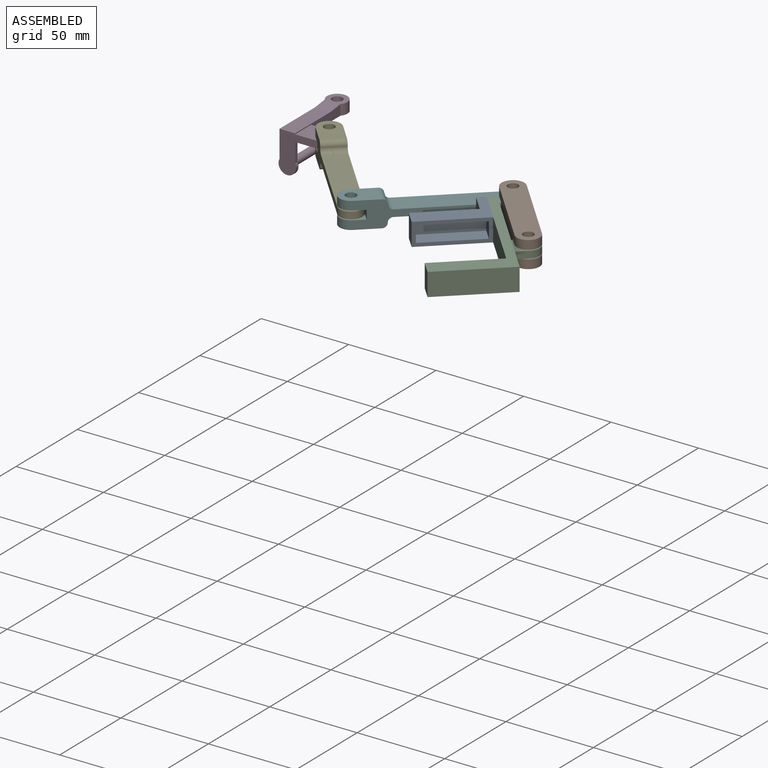
[diagram: assembled view]
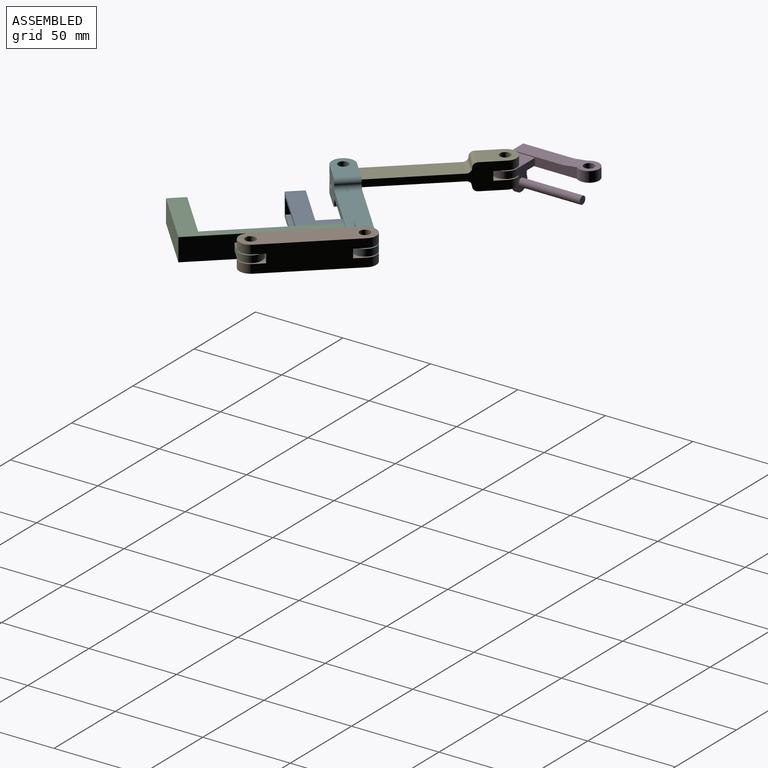
[diagram: assembled view, second angle]
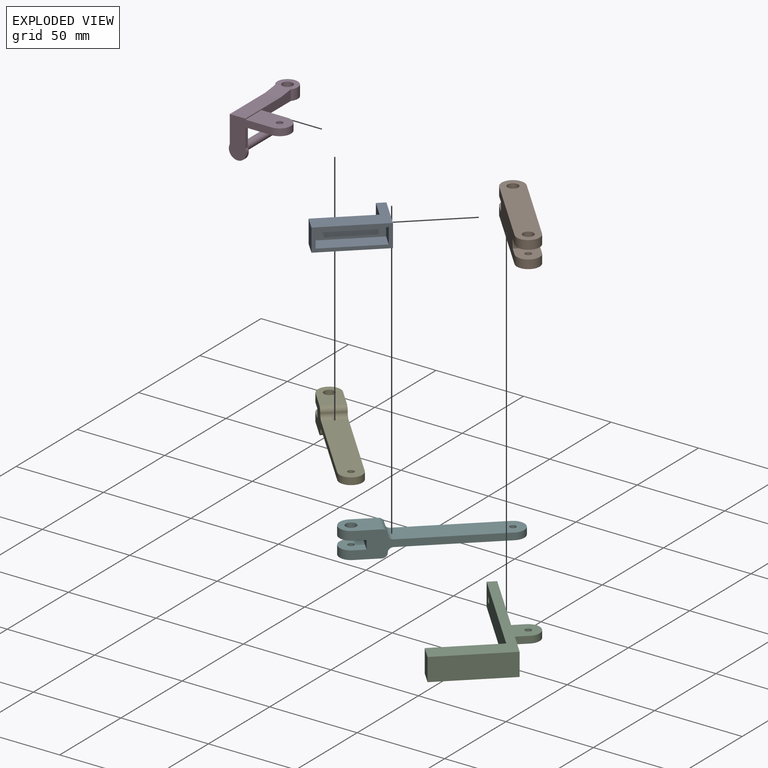
[diagram: exploded view]
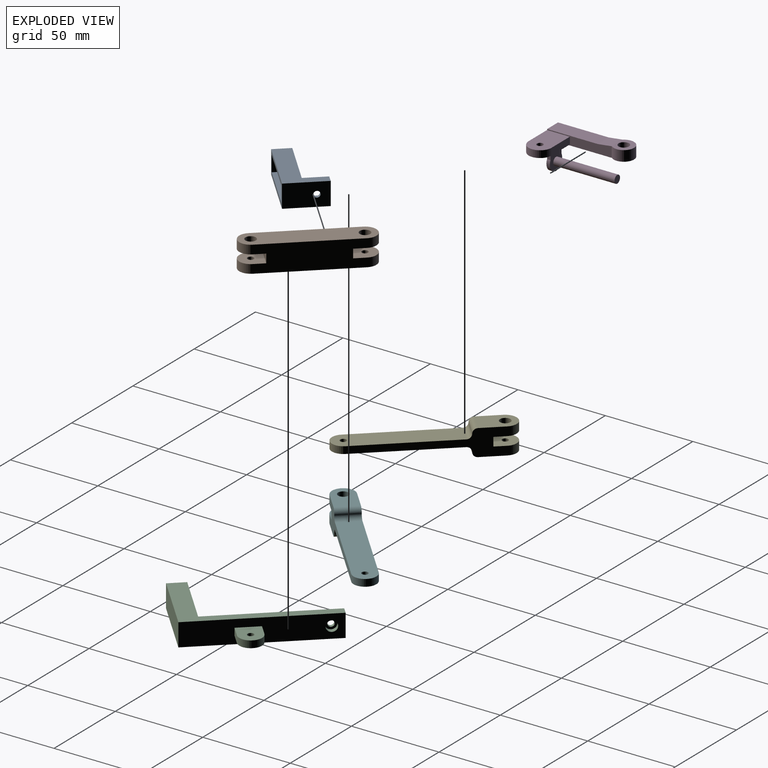
[diagram: exploded view, second angle]
ASSEMBLY  parts=6 mates=5
PART A: 21 faces, bbox 38.5x23x13 mm
  f0: plane 34.5x9mm, normal (0,-1,0), area 310.5mm2, adj f10,f11,f12,f13
  f1: plane 3.46x3mm, normal (0,0,1), area 10.4mm2, adj f2,f6,f8,f15
  f2: plane 3x3mm, normal (0,0.87,0.5), area 10.4mm2, adj f1,f3,f6,f15
  f3: plane 3x3mm, normal (0,0.87,-0.5), area 10.4mm2, adj f2,f4,f6,f15
  f4: plane 3.46x3mm, normal (0,0,-1), area 10.4mm2, adj f3,f5,f6,f15
  f5: plane 3x3mm, normal (0,-0.87,-0.5), area 10.4mm2, adj f4,f6,f8,f15
  f6: plane 6.93x6mm, normal (-1,0,0), area 21.6mm2, adj f1,f2,f3,f4,f5,f7,f8
  f7: cylinder r=1.75mm len=3.5mm, axis (1,0,0), area 22mm2, adj f6,f20
  f8: plane 3x3mm, normal (0,-0.87,0.5), area 10.4mm2, adj f1,f5,f6,f15
  f9: plane 33.5x13mm, normal (0,1,0), area 435.5mm2, adj f14,f15,f18,f19
  f10: plane 9x9mm, normal (-1,0,0), area 81mm2, adj f0,f11,f13,f17
  f11: plane 34.5x9mm, normal (0,0,-1), area 310.5mm2, adj f0,f10,f12,f17
  f12: plane 9x9mm, normal (1,0,0), area 81mm2, adj f0,f11,f13,f17
  f13: plane 34.5x9mm, normal (0,0,1), area 310.5mm2, adj f0,f10,f12,f17
  f14: plane 13x10mm, normal (-1,0,0), area 130mm2, adj f9,f17,f18,f19
  f15: plane 13x13mm, normal (-1,0,0), area 137.8mm2, adj f1,f2,f3,f4,f5,f8,f9,f16
  f16: plane 13x5mm, normal (0,1,0), area 65mm2, adj f15,f18,f19,f20
  f17: plane 38.5x13mm, normal (0,-1,0), area 190mm2, adj f10,f11,f12,f13,f14,f18,f19,f20
  f18: plane 38.5x23mm, normal (0,0,1), area 450mm2, adj f9,f14,f15,f16,f17,f20
  f19: plane 38.5x23mm, normal (0,0,-1), area 450mm2, adj f9,f14,f15,f16,f17,f20
  f20: plane 23x13mm, normal (1,0,0), area 289.4mm2, adj f7,f16,f17,f18,f19
PART B: 36 faces, bbox 15x67x13 mm
  f0: cylinder r=1.75mm len=3.5mm, axis (-1,0,0), area 22mm2, adj f9,f19
  f1: cylinder r=1.75mm len=3.5mm, axis (1,0,0), area 22mm2, adj f10,f12
  f2: plane 54x15mm, normal (0,0,1), area 745mm2, adj f4,f5,f6,f7,f8,f9,f10,f22
  f3: plane 54x15mm, normal (0,0,-1), area 745mm2, adj f4,f5,f6,f7,f8,f9,f10,f22
  f4: plane 13x5mm, normal (0,-1,0), area 65mm2, adj f2,f3,f9,f10
  f5: cylinder r=6.5mm len=13mm, axis (-1,0,0), area 102.1mm2, adj f2,f3,f6,f9
  f6: plane 67x13mm, normal (1,0,0), area 772.4mm2, adj f2,f3,f5,f13,f14,f15,f16,f17
  f7: cylinder r=6.5mm len=13mm, axis (1,0,0), area 102.1mm2, adj f2,f3,f8,f10
  f8: plane 67x13mm, normal (-1,0,0), area 778.2mm2, adj f2,f3,f7,f11,f24,f27
  f9: plane 13x13mm, normal (-1,0,0), area 141.2mm2, adj f0,f2,f3,f4,f5
  f10: plane 13x13mm, normal (1,0,0), area 141.2mm2, adj f1,f2,f3,f4,f7
  f11: cylinder r=3mm len=6mm, axis (-1,0,0), area 56.5mm2, adj f8,f12
  f12: plane 6x6mm, normal (-1,0,0), area 18.7mm2, adj f1,f11
  f13: plane 3x3mm, normal (0,-0.87,-0.5), area 10.4mm2, adj f6,f14,f18,f19
  f14: plane 3.46x3mm, normal (0,0,-1), area 10.4mm2, adj f6,f13,f15,f19
  f15: plane 3x3mm, normal (0,0.87,-0.5), area 10.4mm2, adj f6,f14,f16,f19
  f16: plane 3x3mm, normal (0,0.87,0.5), area 10.4mm2, adj f6,f15,f17,f19
  f17: plane 3.46x3mm, normal (0,0,1), area 10.4mm2, adj f6,f16,f18,f19
  f18: plane 3x3mm, normal (0,-0.87,0.5), area 10.4mm2, adj f6,f13,f17,f19
  f19: plane 6.93x6mm, normal (1,0,0), area 21.6mm2, adj f0,f13,f14,f15,f16,f17,f18
  f20: cylinder r=1.75mm len=3.5mm, axis (-1,0,0), area 22mm2, adj f25,f35
  f21: cylinder r=1.75mm len=3.5mm, axis (1,0,0), area 22mm2, adj f26,f28
  f22: plane 13x5mm, normal (0,1,0), area 65mm2, adj f2,f3,f25,f26
  f23: cylinder r=6.5mm len=13mm, axis (-1,0,0), area 102.1mm2, adj f2,f3,f6,f25
  f24: cylinder r=6.5mm len=13mm, axis (1,0,0), area 102.1mm2, adj f2,f3,f8,f26
  f25: plane 13x13mm, normal (-1,0,0), area 141.2mm2, adj f2,f3,f20,f22,f23
  f26: plane 13x13mm, normal (1,0,0), area 141.2mm2, adj f2,f3,f21,f22,f24
  f27: cylinder r=3mm len=6mm, axis (-1,0,0), area 56.5mm2, adj f8,f28
  f28: plane 6x6mm, normal (-1,0,0), area 18.7mm2, adj f21,f27
  f29: plane 3x3mm, normal (0,0.87,-0.5), area 10.4mm2, adj f6,f30,f34,f35
  f30: plane 3.46x3mm, normal (0,0,-1), area 10.4mm2, adj f6,f29,f31,f35
  f31: plane 3x3mm, normal (0,-0.87,-0.5), area 10.4mm2, adj f6,f30,f32,f35
  f32: plane 3x3mm, normal (0,-0.87,0.5), area 10.4mm2, adj f6,f31,f33,f35
  f33: plane 3.46x3mm, normal (0,0,1), area 10.4mm2, adj f6,f32,f34,f35
  f34: plane 3x3mm, normal (0,0.87,0.5), area 10.4mm2, adj f6,f29,f33,f35
  f35: plane 6.93x6mm, normal (1,0,0), area 21.6mm2, adj f20,f29,f30,f31,f32,f33,f34
PART C: 22 faces, bbox 58.5x79x13 mm
  f0: plane 79x43.5mm, normal (0,0,-1), area 780mm2, adj f2,f6,f8,f10,f14,f15
  f1: plane 79x43.5mm, normal (0,0,1), area 780mm2, adj f2,f6,f8,f10,f14,f15
  f2: plane 43.5x13mm, normal (0,-1,0), area 565.5mm2, adj f0,f1,f6,f14
  f3: plane 34.5x9mm, normal (0,0,1), area 310.5mm2, adj f5,f7,f8,f9
  f4: plane 34.5x9mm, normal (0,0,-1), area 310.5mm2, adj f5,f7,f8,f9
  f5: plane 9x9mm, normal (1,0,0), area 81mm2, adj f3,f4,f8,f9
  f6: plane 13x10mm, normal (-1,0,0), area 130mm2, adj f0,f1,f2,f8
  f7: plane 9x9mm, normal (-1,0,0), area 81mm2, adj f3,f4,f8,f9
  f8: plane 38.5x13mm, normal (0,1,0), area 190mm2, adj f0,f1,f3,f4,f5,f6,f7,f10
  f9: plane 34.5x9mm, normal (0,1,0), area 310.5mm2, adj f3,f4,f5,f7
  f10: plane 69x13mm, normal (-1,0,0), area 887.4mm2, adj f0,f1,f8,f12,f15
  f11: plane 6x6mm, normal (1,0,0), area 18.7mm2, adj f12,f13
  f12: cylinder r=1.75mm len=3.5mm, axis (1,0,0), area 22mm2, adj f10,f11
  f13: cylinder r=3mm len=6mm, axis (1,0,0), area 56.5mm2, adj f11,f14
  f14: plane 79x13mm, normal (1,0,0), area 946.7mm2, adj f0,f1,f2,f13,f15,f17,f19,f20
  f15: plane 13x5mm, normal (0,1,0), area 65mm2, adj f0,f1,f10,f14
  f16: cylinder r=6.5mm len=13mm, axis (0,0,-1), area 81.7mm2, adj f17,f19,f20,f21
  f17: plane 8.5x4mm, normal (0,1,0), area 34mm2, adj f14,f16,f20,f21
  f18: cylinder r=1.75mm len=4mm, axis (0,0,-1), area 44mm2, adj f20,f21
  f19: plane 8.5x4mm, normal (0,-1,0), area 34mm2, adj f14,f16,f20,f21
  f20: plane 15x13mm, normal (0,0,1), area 167.2mm2, adj f14,f16,f17,f18,f19
  f21: plane 15x13mm, normal (0,0,-1), area 167.2mm2, adj f14,f16,f17,f18,f19
PART D: 29 faces, bbox 31.8x46.6x23.8 mm
  f0: plane 15x4mm, normal (0,1,0), area 60mm2, adj f3,f11,f27,f28
  f1: cylinder r=1.75mm len=4mm, axis (0,0,1), area 44mm2, adj f27,f28
  f2: plane 44.58x11.66mm, normal (0,0,-1), area 347mm2, adj f9,f11,f12,f13,f17,f18,f19,f20
  f3: cylinder r=6.5mm len=13mm, axis (0,0,1), area 81.7mm2, adj f0,f4,f27,f28
  f4: plane 24.47x22.75mm, normal (0,-1,0), area 259.4mm2, adj f3,f5,f9,f10,f11,f27,f28
  f5: plane 29x8.93mm, normal (0,0,1), area 259mm2, adj f4,f9,f11,f24
  f6: cylinder r=1.75mm len=3.5mm, axis (0,0,-1), area 22mm2, adj f16,f23
  f7: cylinder r=2.25mm len=35mm, axis (0,-1,0), area 494.8mm2, adj f8,f12
  f8: plane 4.5x4.5mm, normal (0,1,0), area 15.9mm2, adj f7
  f9: plane 37x16.5mm, normal (-1,0,0), area 210mm2, adj f2,f4,f5,f10,f12,f13,f24
  f10: cylinder r=5mm len=10mm, axis (0,1,0), area 40.8mm2, adj f4,f9,f11,f12
  f11: plane 37x16.5mm, normal (1,0,0), area 158mm2, adj f0,f2,f4,f5,f10,f12,f13,f24
  f12: plane 17.75x10mm, normal (0,1,0), area 138.8mm2, adj f2,f7,f9,f10,f11
  f13: cylinder r=5.83mm len=11.66mm, axis (0,0,-1), area 158.8mm2, adj f2,f9,f11,f14
  f14: plane 11.66x9.58mm, normal (0,0,1), area 65.6mm2, adj f13,f15,f24
  f15: cylinder r=3mm len=6mm, axis (0,0,1), area 56.5mm2, adj f14,f16
  f16: plane 6x6mm, normal (0,0,1), area 18.7mm2, adj f6,f15
  f17: plane 3x1.73mm, normal (0.87,-0.5,0), area 3.5mm2, adj f2,f18,f22,f23
  f18: plane 3.46x1mm, normal (0,-1,0), area 3.5mm2, adj f2,f17,f19,f23
  f19: plane 3x1.73mm, normal (-0.87,-0.5,0), area 3.5mm2, adj f2,f18,f20,f23
  f20: plane 3x1.73mm, normal (-0.87,0.5,0), area 3.5mm2, adj f2,f19,f21,f23
  f21: plane 3.46x1mm, normal (0,1,0), area 3.5mm2, adj f2,f20,f22,f23
  f22: plane 3x1.73mm, normal (0.87,0.5,0), area 3.5mm2, adj f2,f17,f21,f23
  f23: plane 6.93x6mm, normal (0,0,-1), area 21.6mm2, adj f6,f17,f18,f19,f20,f21,f22
  f24: plane 8.93x8mm, normal (0,-0.12,0.99), area 72mm2, adj f5,f9,f11,f14
  f25: cylinder r=3mm len=6mm, axis (0,0,-1), area 56.5mm2, adj f2,f26
  f26: plane 6x6mm, normal (0,0,-1), area 28.3mm2, adj f25
  f27: plane 21.5x13mm, normal (0,0,1), area 251.7mm2, adj f0,f1,f3,f4,f11
  f28: plane 21.5x13mm, normal (0,0,-1), area 251.7mm2, adj f0,f1,f3,f4,f11
PART E: 28 faces, bbox 15x89.5x13 mm
  f0: cylinder r=1.75mm len=3.5mm, axis (-1,0,0), area 22mm2, adj f13,f23
  f1: cylinder r=1.75mm len=3.5mm, axis (1,0,0), area 22mm2, adj f14,f16
  f2: plane 76.5x15mm, normal (0,0,1), area 455mm2, adj f4,f5,f6,f8,f9,f10,f11,f12
  f3: plane 76.5x15mm, normal (0,0,-1), area 455mm2, adj f4,f5,f6,f8,f9,f10,f11,f12
  f4: plane 63.75x13mm, normal (1,0,0), area 801mm2, adj f2,f3,f5,f7,f27
  f5: cylinder r=6.5mm len=13mm, axis (-1,0,0), area 81.7mm2, adj f2,f3,f4,f8
  f6: plane 13x5mm, normal (0,-1,0), area 65mm2, adj f2,f3,f13,f14
  f7: cylinder r=1.75mm len=4mm, axis (-1,0,0), area 44mm2, adj f4,f8
  f8: plane 63.75x13mm, normal (-1,0,0), area 801mm2, adj f2,f3,f5,f7,f25
  f9: cylinder r=6.5mm len=13mm, axis (-1,0,0), area 102.1mm2, adj f2,f3,f10,f13
  f10: plane 20.25x13mm, normal (1,0,0), area 213.9mm2, adj f2,f3,f9,f17,f18,f19,f20,f21
  f11: cylinder r=6.5mm len=13mm, axis (1,0,0), area 102.1mm2, adj f2,f3,f12,f14
  f12: plane 20.25x13mm, normal (-1,0,0), area 216.8mm2, adj f2,f3,f11,f15,f24
  f13: plane 13x13mm, normal (-1,0,0), area 141.2mm2, adj f0,f2,f3,f6,f9
  f14: plane 13x13mm, normal (1,0,0), area 141.2mm2, adj f1,f2,f3,f6,f11
  f15: cylinder r=3mm len=6mm, axis (-1,0,0), area 56.5mm2, adj f12,f16
  f16: plane 6x6mm, normal (-1,0,0), area 18.7mm2, adj f1,f15
  f17: plane 3x3mm, normal (0,-0.87,-0.5), area 10.4mm2, adj f10,f18,f22,f23
  f18: plane 3.46x3mm, normal (0,0,-1), area 10.4mm2, adj f10,f17,f19,f23
  f19: plane 3x3mm, normal (0,0.87,-0.5), area 10.4mm2, adj f10,f18,f20,f23
  f20: plane 3x3mm, normal (0,0.87,0.5), area 10.4mm2, adj f10,f19,f21,f23
  f21: plane 3.46x3mm, normal (0,0,1), area 10.4mm2, adj f10,f20,f22,f23
  f22: plane 3x3mm, normal (0,-0.87,0.5), area 10.4mm2, adj f10,f17,f21,f23
  f23: plane 6.93x6mm, normal (1,0,0), area 21.6mm2, adj f0,f17,f18,f19,f20,f21,f22
  f24: cylinder r=2.75mm len=13mm, axis (0,0,1), area 56.2mm2, adj f2,f3,f12,f25
  f25: cylinder r=2.75mm len=13mm, axis (0,0,1), area 56.2mm2, adj f2,f3,f8,f24
  f26: cylinder r=2.75mm len=13mm, axis (0,0,-1), area 56.2mm2, adj f2,f3,f10,f27
  f27: cylinder r=2.75mm len=13mm, axis (0,0,1), area 56.2mm2, adj f2,f3,f4,f26
PART F: same geometry as E
PLACE A rot(axis=(0,0,1),42.6deg) t=(193.96,-32.78,69.13)mm
PLACE B rot(axis=(-0.34,0.88,0.34),97.6deg) t=(205.99,18.39,75.63)mm
PLACE C rot(axis=(0,0,1),42.6deg) t=(193.96,-32.78,69.13)mm
PLACE D t=(51.04,57.72,58.38)mm fixed
PLACE E rot(axis=(0.68,0.27,-0.68),150.2deg) t=(79.69,61.84,75.63)mm
PLACE F rot(axis=(0.37,0.85,-0.37),99.3deg) t=(122.7,15.12,75.63)mm
MATE revolute B.f20 <-> F.f5  axis (0,0,-1) through (178.6,57.74,76.13)mm
MATE revolute C.f16 <-> B.f0  axis (0,0,1) through (215.17,18.01,75.63)mm
MATE revolute F.f0 <-> E.f5  axis (0,0,-1) through (122.31,5.93,76.13)mm
MATE revolute E.f0 <-> D.f1  axis (0,0,-1) through (70.51,62.22,76.13)mm
MATE fastened A.f7 <-> C.f12  axis (0.74,0.68,0) through (178.49,37.93,73.63)mm
